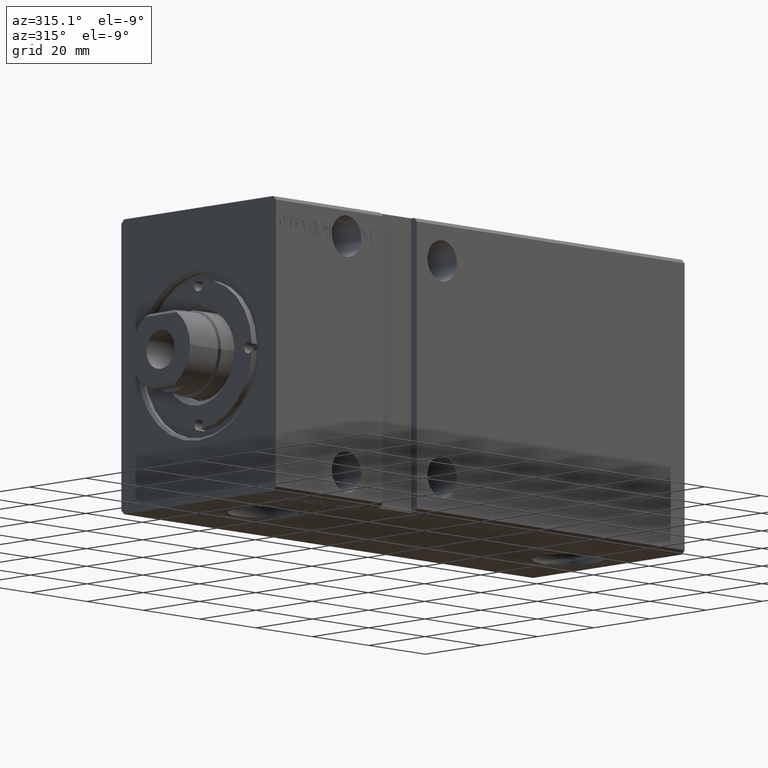
[diagram: clean part render]
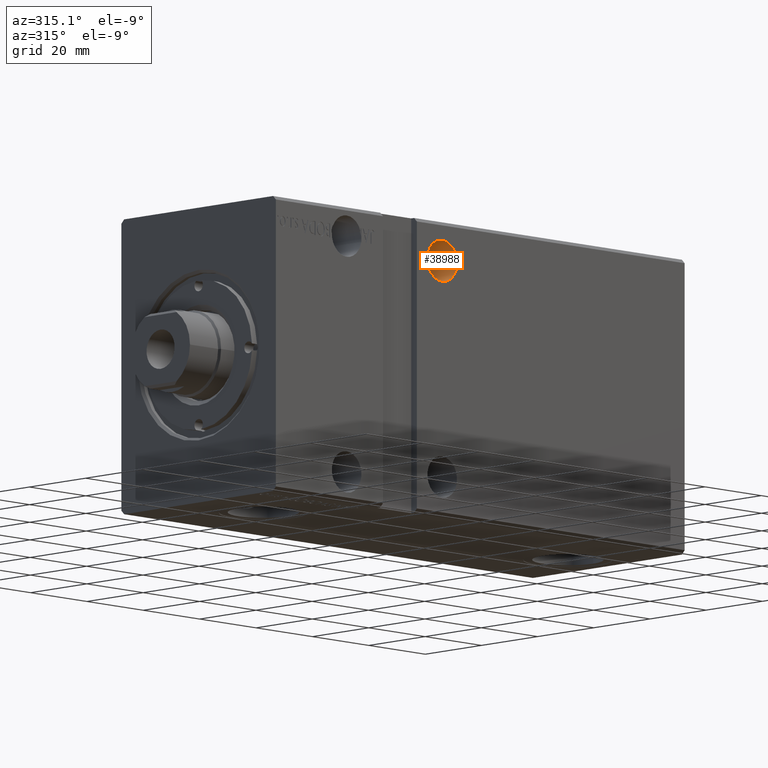
[diagram: same view with one face highlighted and labeled with its STEP entity id]
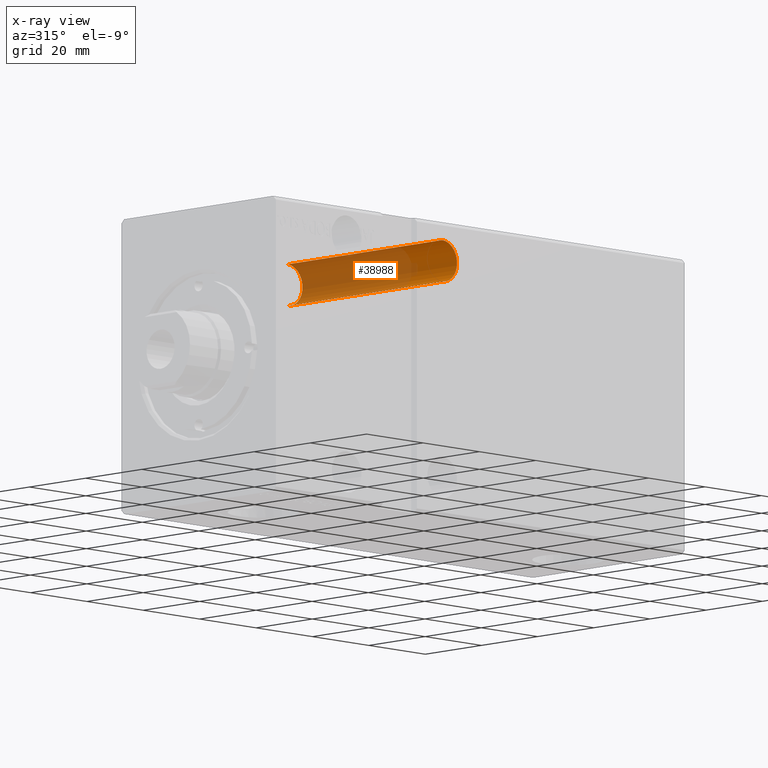
[diagram: x-ray of the same camera — body ghosted, the highlighted face saturated]
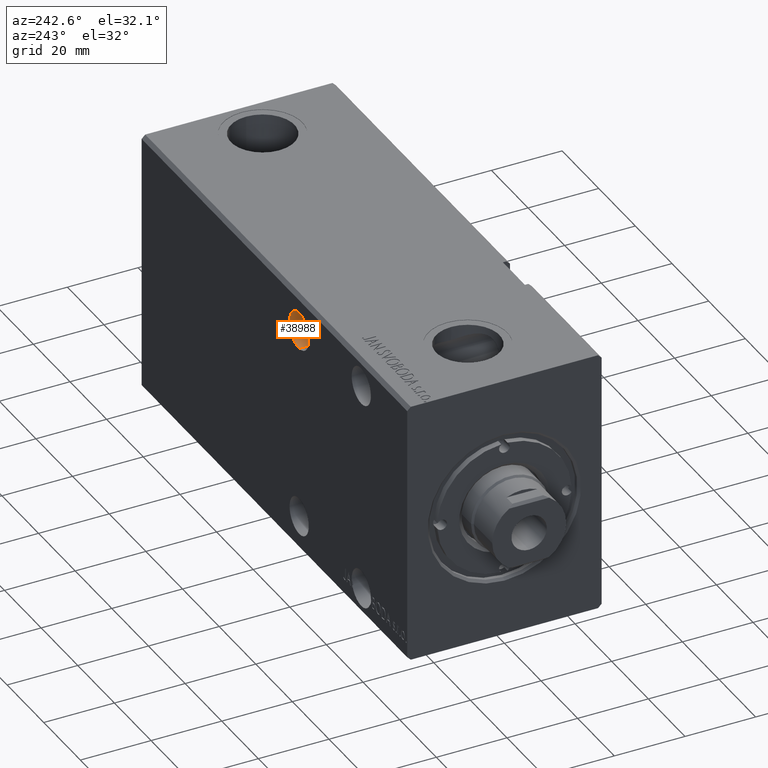
[diagram: same view with one face highlighted and labeled with its STEP entity id]
A machine part, auxiliary view. The second image highlights one B-rep face of the part: STEP entity #38988.
The next image is the same camera in x-ray: the body ghosted, the highlighted face saturated — about 72% of this face is hidden behind the body in this view.
A second angle (auxiliary view) of the same face is appended — the face is thin or edge-on in the first view.
In plain terms, the highlighted cylindrical surface (edge-blend (fillet) strip) has radius 5.25 mm, axis along (-0, -1, -0).
Its self-contained STEP definition (entity closure, byte-faithful):
#2305 = ORIENTED_EDGE ( 'NONE', *, *, #32167, .F. ) ;
#2415 = ORIENTED_EDGE ( 'NONE', *, *, #15643, .T. ) ;
#2594 = LINE ( 'NONE', #6247, #11641 ) ;
#3837 = DIRECTION ( 'NONE',  ( -0.000000000000000000, 1.000000000000000000, 4.752667057470704875E-17 ) ) ;
#4438 = AXIS2_PLACEMENT_3D ( 'NONE', #13410, #3837, #35180 ) ;
#4636 = DIRECTION ( 'NONE',  ( -0.000000000000000000, 1.000000000000000000, 5.507058653894625853E-17 ) ) ;
#5233 = CARTESIAN_POINT ( 'NONE',  ( 59.00000000000000711, 62.50000000000002842, 27.50000000000000000 ) ) ;
#6247 = CARTESIAN_POINT ( 'NONE',  ( 59.00000000000000711, 62.50000000000002842, 32.74999999999999289 ) ) ;
#7690 = CIRCLE ( 'NONE', #4438, 5.249999999999997335 ) ;
#8403 = CARTESIAN_POINT ( 'NONE',  ( 59.00000000000000711, -27.50000000000000355, 32.74999999999999289 ) ) ;
#11641 = VECTOR ( 'NONE', #33929, 1000.000000000000000 ) ;
#13410 = CARTESIAN_POINT ( 'NONE',  ( 59.00000000000000711, 27.50000000000001066, 27.49999999999999645 ) ) ;
#15042 = VERTEX_POINT ( 'NONE', #19733 ) ;
#15643 = EDGE_CURVE ( 'NONE', #19748, #15042, #37394, .T. ) ;
#15886 = VECTOR ( 'NONE', #31099, 1000.000000000000000 ) ;
#16127 = CIRCLE ( 'NONE', #35607, 5.249999999999997335 ) ;
#17049 = DIRECTION ( 'NONE',  ( 0.000000000000000000, 0.000000000000000000, -1.000000000000000000 ) ) ;
#17053 = DIRECTION ( 'NONE',  ( 0.000000000000000000, 0.000000000000000000, 1.000000000000000000 ) ) ;
#17996 = VERTEX_POINT ( 'NONE', #31347 ) ;
#18154 = CARTESIAN_POINT ( 'NONE',  ( 59.00000000000000711, 27.50000000000001066, 22.25000000000000000 ) ) ;
#18585 = ORIENTED_EDGE ( 'NONE', *, *, #33911, .F. ) ;
#19602 = ORIENTED_EDGE ( 'NONE', *, *, #32822, .T. ) ;
#19733 = CARTESIAN_POINT ( 'NONE',  ( 59.00000000000000711, -27.50000000000000355, 22.25000000000000000 ) ) ;
#19748 = VERTEX_POINT ( 'NONE', #18154 ) ;
#22951 = DIRECTION ( 'NONE',  ( -0.000000000000000000, -1.000000000000000000, -5.507058653894626469E-17 ) ) ;
#24595 = CARTESIAN_POINT ( 'NONE',  ( 59.00000000000000711, 62.50000000000002842, 22.25000000000000355 ) ) ;
#25896 = VERTEX_POINT ( 'NONE', #8403 ) ;
#28537 = AXIS2_PLACEMENT_3D ( 'NONE', #5233, #22951, #17049 ) ;
#29145 = EDGE_LOOP ( 'NONE', ( #18585, #19602, #2415, #2305 ) ) ;
#31099 = DIRECTION ( 'NONE',  ( -0.000000000000000000, -1.000000000000000000, -5.507058653894626469E-17 ) ) ;
#31347 = CARTESIAN_POINT ( 'NONE',  ( 59.00000000000000711, 27.50000000000001066, 32.74999999999999289 ) ) ;
#32167 = EDGE_CURVE ( 'NONE', #25896, #15042, #16127, .T. ) ;
#32515 = CARTESIAN_POINT ( 'NONE',  ( 59.00000000000000711, -27.50000000000000355, 27.49999999999999645 ) ) ;
#32822 = EDGE_CURVE ( 'NONE', #17996, #19748, #7690, .T. ) ;
#33911 = EDGE_CURVE ( 'NONE', #17996, #25896, #2594, .T. ) ;
#33929 = DIRECTION ( 'NONE',  ( -0.000000000000000000, -1.000000000000000000, -5.507058653894626469E-17 ) ) ;
#35180 = DIRECTION ( 'NONE',  ( 0.000000000000000000, 0.000000000000000000, -1.000000000000000000 ) ) ;
#35607 = AXIS2_PLACEMENT_3D ( 'NONE', #32515, #4636, #17053 ) ;
#35964 = CYLINDRICAL_SURFACE ( 'NONE', #28537, 5.249999999999997335 ) ;
#37394 = LINE ( 'NONE', #24595, #15886 ) ;
#38818 = FACE_OUTER_BOUND ( 'NONE', #29145, .T. ) ;
#38988 = ADVANCED_FACE ( 'NONE', ( #38818 ), #35964, .F. ) ;